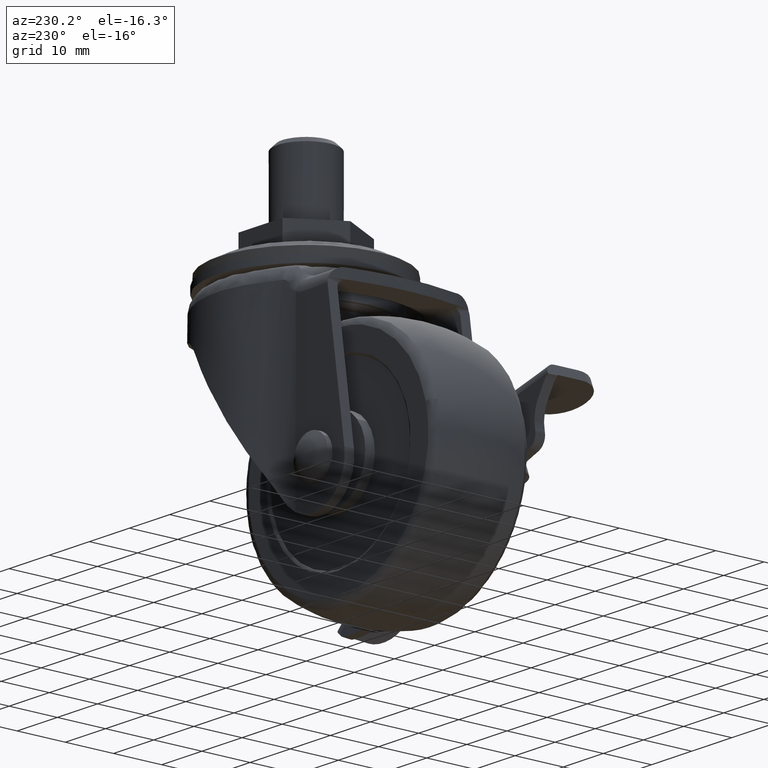
[diagram: clean part render]
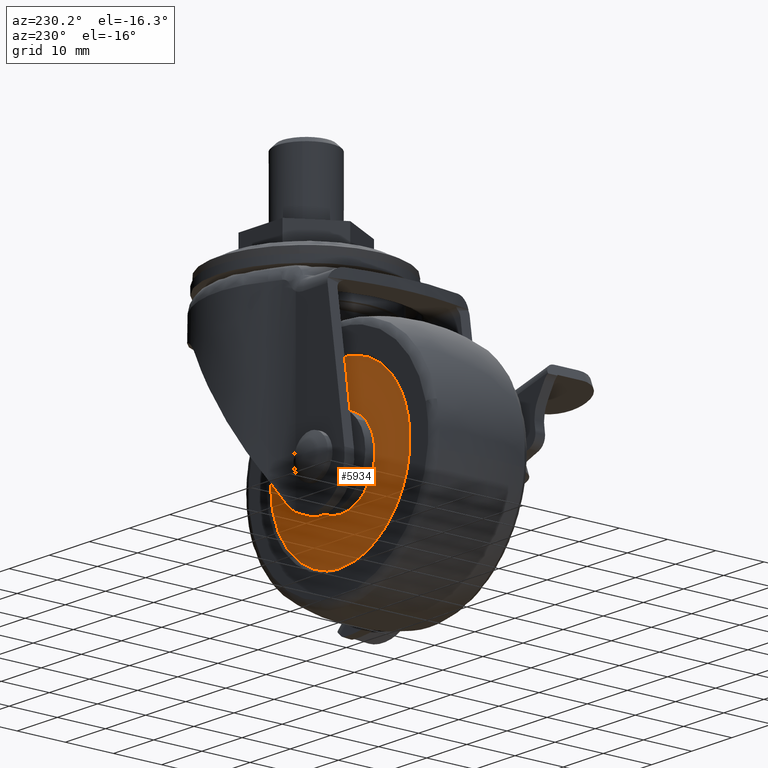
[diagram: same view with one face highlighted and labeled with its STEP entity id]
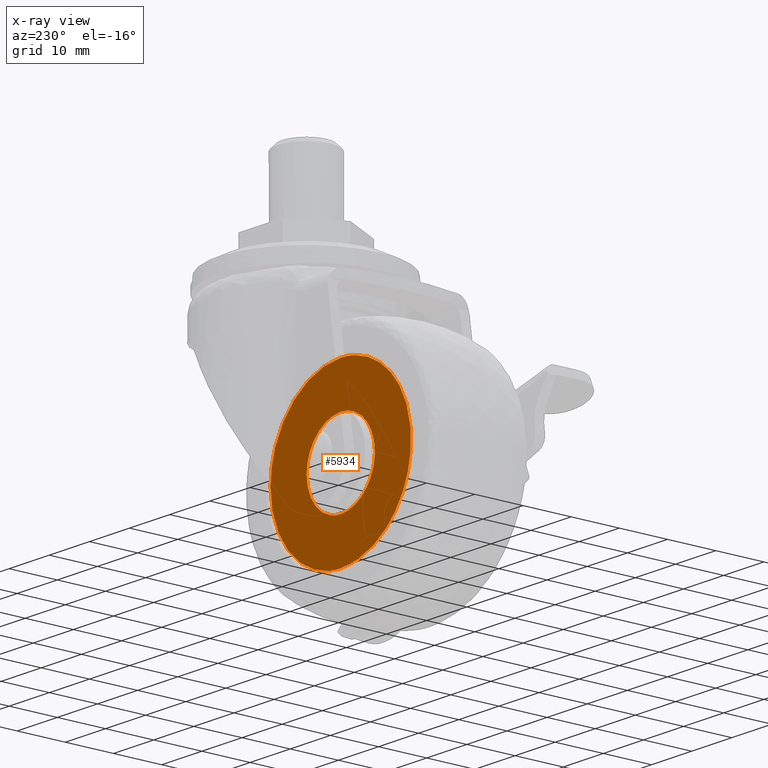
[diagram: x-ray of the same camera — body ghosted, the highlighted face saturated]
A machine part, auxiliary view. The second image highlights one B-rep face of the part: STEP entity #5934.
The next image is the same camera in x-ray: the body ghosted, the highlighted face saturated — about 0% of this face is hidden behind the body in this view.
In plain terms, the highlighted face is a freeform B-spline surface patch.
Its self-contained STEP definition (entity closure, byte-faithful):
#4369=CARTESIAN_POINT('',(-25.490223313510530,9.499999999989861,-34.511691460489992));
#4370=VERTEX_POINT('',#4369);
#4371=CARTESIAN_POINT('',(-19.0,9.500000000000000,-31.500498999999980));
#4372=VERTEX_POINT('',#4371);
#4373=CARTESIAN_POINT('',(-25.490223313510530,9.499999999989861,-34.511691460489992));
#4374=CARTESIAN_POINT('',(-25.142550969853200,9.499999999990424,-34.100497774244182));
#4375=CARTESIAN_POINT('',(-24.341057373788210,9.499999999991625,-33.317513611837022));
#4376=CARTESIAN_POINT('',(-23.142130928898212,9.499999999993550,-32.537220147446938));
#4377=CARTESIAN_POINT('',(-21.876385653190269,9.499999999995515,-31.970765970719711));
#4378=CARTESIAN_POINT('',(-20.576951477194310,9.499999999997510,-31.599508322057460));
#4379=CARTESIAN_POINT('',(-19.538478870413531,9.499999999999194,-31.500435981876642));
#4380=CARTESIAN_POINT('',(-19.0,9.500000000000000,-31.500498999999980));
#4381=B_SPLINE_CURVE_WITH_KNOTS('',3,(#4373,#4374,#4375,#4376,#4377,#4378,#4379,#4380),.UNSPECIFIED.,.F.,.U.,(4,1,1,1,1,4),(9.085986E-009,1.615437599462230,3.346274901175026,4.269370963017357,5.769433140480934,7.384870730841665),.UNSPECIFIED.);
#4382=EDGE_CURVE('',#4370,#4372,#4381,.T.);
#4384=CARTESIAN_POINT('',(-10.500000000000041,9.500000000000000,-40.000500638034417));
#4385=VERTEX_POINT('',#4384);
#4386=CARTESIAN_POINT('',(-19.0,9.500000000000000,-31.500498999999980));
#4387=CARTESIAN_POINT('',(-18.408897193475521,9.500000000000002,-31.500409545259519));
#4388=CARTESIAN_POINT('',(-17.504919692773431,9.500000000000000,-31.595202981023981));
#4389=CARTESIAN_POINT('',(-16.160177537685730,9.500000000000007,-31.958471105305790));
#4390=CARTESIAN_POINT('',(-15.037520846074271,9.499999999999966,-32.439701750589350));
#4391=CARTESIAN_POINT('',(-13.770908768418630,9.499999999999989,-33.241734779141140));
#4392=CARTESIAN_POINT('',(-12.714806823550370,9.500000000000044,-34.210785210429563));
#4393=CARTESIAN_POINT('',(-11.785952933489311,9.499999999999918,-35.431674513010030));
#4394=CARTESIAN_POINT('',(-11.069952898942161,9.500000000000062,-36.791041569175093));
#4395=CARTESIAN_POINT('',(-10.602673537360440,9.499999999999961,-38.366310877471683));
#4396=CARTESIAN_POINT('',(-10.499961718072260,9.500000000000044,-39.478954269721470));
#4397=CARTESIAN_POINT('',(-10.500000000000041,9.500000000000000,-40.000500638034417));
#4398=B_SPLINE_CURVE_WITH_KNOTS('',3,(#4386,#4387,#4388,#4389,#4390,#4391,#4392,#4393,#4394,#4395,#4396,#4397),.UNSPECIFIED.,.F.,.U.,(4,1,1,1,1,1,1,1,1,4),(0.000000044300764,1.773289658687762,2.712091331711308,4.172463053500472,5.424195000780333,7.197450831937689,8.449204726821312,10.013890124126499,11.787204620400560,13.351853477668270),.UNSPECIFIED.);
#4399=EDGE_CURVE('',#4372,#4385,#4398,.T.);
#4401=CARTESIAN_POINT('',(-19.0,9.500000000000000,-48.500499000000218));
#4402=VERTEX_POINT('',#4401);
#4403=CARTESIAN_POINT('',(-10.500000000000041,9.500000000000000,-40.000500638034417));
#4404=CARTESIAN_POINT('',(-10.499676208403621,9.500000000000014,-40.800248864744461));
#4405=CARTESIAN_POINT('',(-10.697802791817089,9.499999999999982,-42.190878699270463));
#4406=CARTESIAN_POINT('',(-11.409564113311211,9.500000000000002,-43.939398063798443));
#4407=CARTESIAN_POINT('',(-12.361124553203160,9.500000000000076,-45.402075159365047));
#4408=CARTESIAN_POINT('',(-13.492715731893300,9.499999999999833,-46.547735560093699));
#4409=CARTESIAN_POINT('',(-14.705920825740391,9.500000000000227,-47.368976410188843));
#4410=CARTESIAN_POINT('',(-15.895534433823221,9.499999999999778,-47.949645732032067));
#4411=CARTESIAN_POINT('',(-17.296292581778079,9.500000000000036,-48.383975046986983));
#4412=CARTESIAN_POINT('',(-18.408904709986150,9.500000000000030,-48.500579434172018));
#4413=CARTESIAN_POINT('',(-19.0,9.500000000000000,-48.500499000000218));
#4414=B_SPLINE_CURVE_WITH_KNOTS('',3,(#4403,#4404,#4405,#4406,#4407,#4408,#4409,#4410,#4411,#4412,#4413),.UNSPECIFIED.,.F.,.U.,(4,1,1,1,1,1,1,1,4),(0.000000044908640,2.399155070098564,4.172462477079163,5.632826094865892,7.614713882631866,8.970764329991772,10.013888739095940,11.578573920126679,13.351851631210179),.UNSPECIFIED.);
#4415=EDGE_CURVE('',#4385,#4402,#4414,.T.);
#4417=CARTESIAN_POINT('',(-24.851013653957530,9.500000000007464,-46.166180817050019));
#4418=VERTEX_POINT('',#4417);
#4419=CARTESIAN_POINT('',(-19.0,9.500000000000000,-48.500499000000218));
#4420=CARTESIAN_POINT('',(-19.571396715345291,9.500000000000730,-48.500572061335127));
#4421=CARTESIAN_POINT('',(-20.546095906217928,9.500000000001970,-48.401834386349051));
#4422=CARTESIAN_POINT('',(-21.811631503645209,9.500000000003595,-48.047665004295652));
#4423=CARTESIAN_POINT('',(-23.267212214640320,9.500000000005453,-47.426632707139433));
#4424=CARTESIAN_POINT('',(-24.241742964169649,9.500000000006672,-46.744946096109757));
#4425=CARTESIAN_POINT('',(-24.851013653957530,9.500000000007464,-46.166180817050019));
#4426=B_SPLINE_CURVE_WITH_KNOTS('',3,(#4419,#4420,#4421,#4422,#4423,#4424,#4425),.UNSPECIFIED.,.F.,.U.,(4,1,1,1,4),(0.000000017179342,1.714183708736376,2.924209631729443,3.932532767775946,6.453392649674921),.UNSPECIFIED.);
#4427=EDGE_CURVE('',#4402,#4418,#4426,.T.);
#4516=CARTESIAN_POINT('',(-27.499999999999961,9.500000000000000,-40.000497361965962));
#4517=VERTEX_POINT('',#4516);
#4518=CARTESIAN_POINT('',(-27.499999999999961,9.500000000000000,-40.000497361965962));
#4519=CARTESIAN_POINT('',(-27.500083094056262,9.499999999999023,-39.441086892257182));
#4520=CARTESIAN_POINT('',(-27.416840040233659,9.499999999997344,-38.602019444293958));
#4521=CARTESIAN_POINT('',(-27.105172691219089,9.499999999995184,-37.364928014109744));
#4522=CARTESIAN_POINT('',(-26.582847167128730,9.499999999992676,-36.029640035838277));
#4523=CARTESIAN_POINT('',(-25.951951514045621,9.499999999990816,-35.057367714962083));
#4524=CARTESIAN_POINT('',(-25.490223313510530,9.499999999989861,-34.511691460489992));
#4525=B_SPLINE_CURVE_WITH_KNOTS('',3,(#4518,#4519,#4520,#4521,#4522,#4523,#4524),.UNSPECIFIED.,.F.,.U.,(4,1,1,1,4),(0.000000016832183,1.678214688332489,2.517325055456977,3.822597441527352,5.966983336437478),.UNSPECIFIED.);
#4526=EDGE_CURVE('',#4517,#4370,#4525,.T.);
#4553=CARTESIAN_POINT('',(-24.851013653957530,9.500000000007464,-46.166180817050019));
#4554=CARTESIAN_POINT('',(-25.189839093375930,9.500000000007066,-45.844683650993900));
#4555=CARTESIAN_POINT('',(-25.838337383801811,9.500000000006219,-45.118768852821823));
#4556=CARTESIAN_POINT('',(-26.583164501804401,9.500000000004725,-43.925363660172849));
#4557=CARTESIAN_POINT('',(-27.135280291519731,9.500000000003157,-42.593957099393407));
#4558=CARTESIAN_POINT('',(-27.437280392663940,9.500000000001565,-41.293958411440912));
#4559=CARTESIAN_POINT('',(-27.500008593838619,9.500000000000483,-40.395717925896989));
#4560=CARTESIAN_POINT('',(-27.499999999999961,9.500000000000000,-40.000497361965962));
#4561=B_SPLINE_CURVE_WITH_KNOTS('',3,(#4553,#4554,#4555,#4556,#4557,#4558,#4559,#4560),.UNSPECIFIED.,.F.,.U.,(4,1,1,1,1,4),(0.000000014654212,1.401247158076596,2.910302886153356,4.203739074238175,5.712788940482819,6.898461500762048),.UNSPECIFIED.);
#4562=EDGE_CURVE('',#4418,#4517,#4561,.T.);
#5573=CARTESIAN_POINT('',(-1.500199000000003,9.500000017676403,-40.000499000000097));
#5574=VERTEX_POINT('',#5573);
#5585=CARTESIAN_POINT('',(-19.0,9.500000000000000,-22.500698000000099));
#5586=VERTEX_POINT('',#5585);
#5587=CARTESIAN_POINT('',(-19.0,9.500000000000000,-22.500698000000099));
#5588=CARTESIAN_POINT('',(-17.890426289459249,9.499999999999893,-22.500553631971488));
#5589=CARTESIAN_POINT('',(-16.387202849403248,9.500000000144874,-22.644168367313299));
#5590=CARTESIAN_POINT('',(-13.942889298543470,9.500000000707320,-23.200904086357259));
#5591=CARTESIAN_POINT('',(-11.981068329681399,9.500000001416398,-23.902860953938749));
#5592=CARTESIAN_POINT('',(-9.574003133007331,9.500000002706159,-25.179999955054601));
#5593=CARTESIAN_POINT('',(-7.520090832105580,9.500000004235410,-26.693480982192909));
#5594=CARTESIAN_POINT('',(-5.735383344730943,9.500000006071316,-28.511480532506688));
#5595=CARTESIAN_POINT('',(-4.459707682955613,9.500000007776007,-30.198869948359551));
#5596=CARTESIAN_POINT('',(-3.378116864744117,9.500000009611110,-32.015977724466858));
#5597=CARTESIAN_POINT('',(-2.511706052782265,9.500000011602062,-33.986846196310609));
#5598=CARTESIAN_POINT('',(-1.722635871534593,9.500000014350418,-36.707690036206692));
#5599=CARTESIAN_POINT('',(-1.499952656348766,9.500000016374823,-38.711944174116013));
#5600=CARTESIAN_POINT('',(-1.500199000000003,9.500000017676403,-40.000499000000097));
#5601=B_SPLINE_CURVE_WITH_KNOTS('',3,(#5587,#5588,#5589,#5590,#5591,#5592,#5593,#5594,#5595,#5596,#5597,#5598,#5599,#5600),.UNSPECIFIED.,.F.,.U.,(4,1,1,1,1,1,1,1,1,1,1,4),(0.000000057057306,3.328684405959109,4.509845869254033,7.516433220733443,9.556607561365620,12.670590353966130,15.140211987468311,17.180396046583191,19.005831434388710,21.475525782833522,23.623075180994629,27.488666252114029),.UNSPECIFIED.);
#5602=EDGE_CURVE('',#5586,#5574,#5601,.T.);
#5604=CARTESIAN_POINT('',(-36.382756009716893,9.500000017895676,-42.021100035893213));
#5605=VERTEX_POINT('',#5604);
#5606=CARTESIAN_POINT('',(-36.382756009716893,9.500000017895676,-42.021100035893213));
#5607=CARTESIAN_POINT('',(-36.516034309502587,9.500000016071239,-40.875938028762583));
#5608=CARTESIAN_POINT('',(-36.543195881277953,9.500000013596212,-39.254271899557537));
#5609=CARTESIAN_POINT('',(-36.240344185336383,9.500000010040305,-36.772811782619577));
#5610=CARTESIAN_POINT('',(-35.689041772462097,9.500000006948383,-34.487428863602041));
#5611=CARTESIAN_POINT('',(-34.731972496503339,9.500000004144001,-32.211995035761923));
#5612=CARTESIAN_POINT('',(-33.382538555641432,9.500000001586809,-29.925639095838459));
#5613=CARTESIAN_POINT('',(-31.911770933989921,9.499999999789964,-28.087495894394898));
#5614=CARTESIAN_POINT('',(-29.986409541639361,9.499999998396639,-26.313833897331140));
#5615=CARTESIAN_POINT('',(-28.000544186105088,9.499999997615172,-24.917872717872051));
#5616=CARTESIAN_POINT('',(-25.829720211265641,9.499999997426363,-23.830313707745489));
#5617=CARTESIAN_POINT('',(-23.716916192741241,9.499999997751523,-23.108073968542339));
#5618=CARTESIAN_POINT('',(-21.497879093120730,9.499999998510925,-22.625566420000251));
#5619=CARTESIAN_POINT('',(-19.922299839810350,9.499999999380822,-22.500630677438291));
#5620=CARTESIAN_POINT('',(-19.0,9.500000000000000,-22.500698000000099));
#5621=B_SPLINE_CURVE_WITH_KNOTS('',3,(#5606,#5607,#5608,#5609,#5610,#5611,#5612,#5613,#5614,#5615,#5616,#5617,#5618,#5619,#5620),.UNSPECIFIED.,.F.,.U.,(4,1,1,1,1,1,1,1,1,1,1,1,4),(0.000000065027454,3.458628582079022,4.842093010015379,7.493737417869141,10.491250475218379,12.220578956992920,15.448603907958050,17.523788412775609,20.060144753894662,22.711788894459399,24.786980152639501,26.746903307385882,29.513794460895841),.UNSPECIFIED.);
#5622=EDGE_CURVE('',#5605,#5586,#5621,.T.);
#5679=CARTESIAN_POINT('',(-19.0,9.500000000000000,-57.500300000000102));
#5680=VERTEX_POINT('',#5679);
#5681=CARTESIAN_POINT('',(-19.0,9.500000000000000,-57.500300000000102));
#5682=CARTESIAN_POINT('',(-20.392570845068750,9.499999999999584,-57.500626049582543));
#5683=CARTESIAN_POINT('',(-22.514345360264191,9.500000000294522,-57.245608023391227));
#5684=CARTESIAN_POINT('',(-25.496472344048389,9.500000001365583,-56.319020555030889));
#5685=CARTESIAN_POINT('',(-27.804754547303130,9.500000002651882,-55.206778427080387));
#5686=CARTESIAN_POINT('',(-29.964056307073012,9.500000004378506,-53.712503491318031));
#5687=CARTESIAN_POINT('',(-31.674716051071542,9.500000006202335,-52.136033126380767));
#5688=CARTESIAN_POINT('',(-33.212269212037448,9.500000008318921,-50.304374294615627));
#5689=CARTESIAN_POINT('',(-34.612007337864242,9.500000010889512,-48.081321202412212));
#5690=CARTESIAN_POINT('',(-35.796212574038726,9.500000014154015,-45.257385257658079));
#5691=CARTESIAN_POINT('',(-36.252722421351827,9.500000016601177,-43.140873098280103));
#5692=CARTESIAN_POINT('',(-36.382756009716893,9.500000017895676,-42.021100035893213));
#5693=B_SPLINE_CURVE_WITH_KNOTS('',3,(#5681,#5682,#5683,#5684,#5685,#5686,#5687,#5688,#5689,#5690,#5691,#5692),.UNSPECIFIED.,.F.,.U.,(4,1,1,1,1,1,1,1,1,4),(0.000000047979739,4.177599201061007,6.365885244614184,9.349903606630182,11.836597139322279,14.223765535488621,16.312567791868801,18.998187377909531,22.081668096773189,25.463539447517839),.UNSPECIFIED.);
#5694=EDGE_CURVE('',#5680,#5605,#5693,.T.);
#5696=CARTESIAN_POINT('',(-1.500199000000003,9.500000017676403,-40.000499000000097));
#5697=CARTESIAN_POINT('',(-1.499999048564758,9.500000016410970,-41.253246091761838));
#5698=CARTESIAN_POINT('',(-1.739512271878021,9.500000014169645,-43.472309839872231));
#5699=CARTESIAN_POINT('',(-2.603145533572548,9.500000011325451,-46.287896296772622));
#5700=CARTESIAN_POINT('',(-3.722384351125705,9.500000008935416,-48.654354357354542));
#5701=CARTESIAN_POINT('',(-4.967572645629995,9.500000007027175,-50.542901756848501));
#5702=CARTESIAN_POINT('',(-6.424221944798488,9.500000005333133,-52.221028078625018));
#5703=CARTESIAN_POINT('',(-8.162781043622257,9.500000003710849,-53.826302125607960));
#5704=CARTESIAN_POINT('',(-10.305727495373310,9.500000002245498,-55.277307193580192));
#5705=CARTESIAN_POINT('',(-12.520998175520649,9.500000001212316,-56.300075583624938));
#5706=CARTESIAN_POINT('',(-14.598442574986249,9.500000000526248,-56.979327170226341));
#5707=CARTESIAN_POINT('',(-16.673498715909499,9.500000000102629,-57.398697549870633));
#5708=CARTESIAN_POINT('',(-18.248366969930750,9.499999999999979,-57.500321745958907));
#5709=CARTESIAN_POINT('',(-19.0,9.500000000000000,-57.500300000000102));
#5710=B_SPLINE_CURVE_WITH_KNOTS('',3,(#5696,#5697,#5698,#5699,#5700,#5701,#5702,#5703,#5704,#5705,#5706,#5707,#5708,#5709),.UNSPECIFIED.,.F.,.U.,(4,1,1,1,1,1,1,1,1,1,1,4),(0.000000057058514,3.758215783892396,6.657411624696014,8.804974865578174,11.596789668739079,13.422206725376640,15.462349604802419,18.683694236338930,21.153390726722069,22.764052410416941,25.233763859617881,27.488666252114019),.UNSPECIFIED.);
#5711=EDGE_CURVE('',#5574,#5680,#5710,.T.);
#5915=CARTESIAN_POINT('',(-38.247911599674431,9.500000000000000,-59.248531694820187));
#5916=CARTESIAN_POINT('',(-38.247911599674431,9.500000000000000,-20.752466931021662));
#5917=CARTESIAN_POINT('',(0.248026307819628,9.500000000000000,-59.248531694820187));
#5918=CARTESIAN_POINT('',(0.248026307819628,9.500000000000000,-20.752466931021662));
#5919=B_SPLINE_SURFACE_WITH_KNOTS('',1,1,((#5915,#5917),(#5916,#5918)),.UNSPECIFIED.,.F.,.F.,.U.,(2,2),(2,2),(0.0,38.496064763798543),(0.0,38.495937907494060),.UNSPECIFIED.);
#5920=ORIENTED_EDGE('',*,*,#5602,.T.);
#5921=ORIENTED_EDGE('',*,*,#5711,.T.);
#5922=ORIENTED_EDGE('',*,*,#5694,.T.);
#5923=ORIENTED_EDGE('',*,*,#5622,.T.);
#5924=EDGE_LOOP('',(#5920,#5921,#5922,#5923));
#5925=FACE_OUTER_BOUND('',#5924,.T.);
#5926=ORIENTED_EDGE('',*,*,#4399,.F.);
#5927=ORIENTED_EDGE('',*,*,#4382,.F.);
#5928=ORIENTED_EDGE('',*,*,#4526,.F.);
#5929=ORIENTED_EDGE('',*,*,#4562,.F.);
#5930=ORIENTED_EDGE('',*,*,#4427,.F.);
#5931=ORIENTED_EDGE('',*,*,#4415,.F.);
#5932=EDGE_LOOP('',(#5926,#5927,#5928,#5929,#5930,#5931));
#5933=FACE_BOUND('',#5932,.T.);
#5934=ADVANCED_FACE('',(#5925,#5933),#5919,.T.);